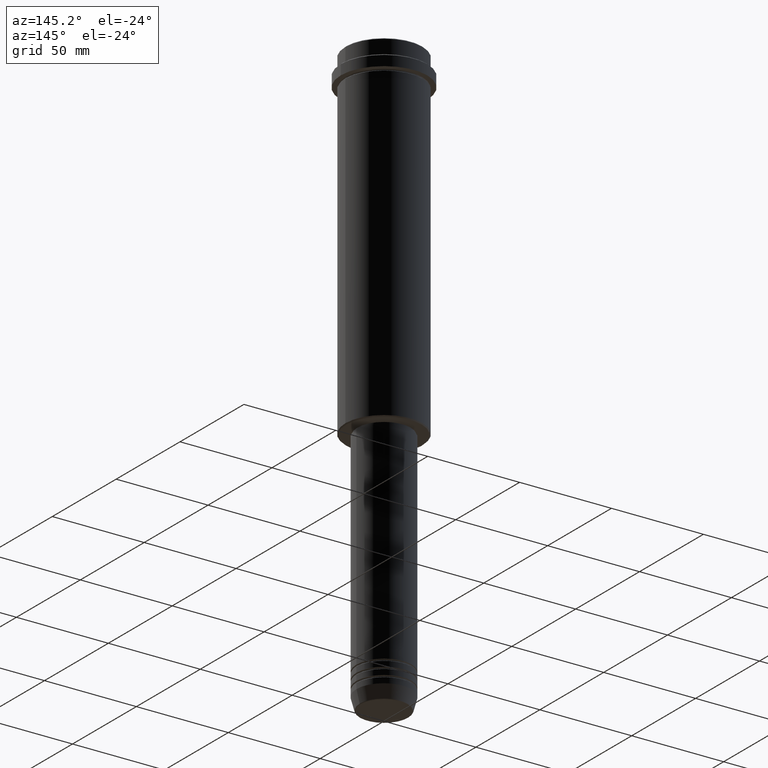
[diagram: clean part render]
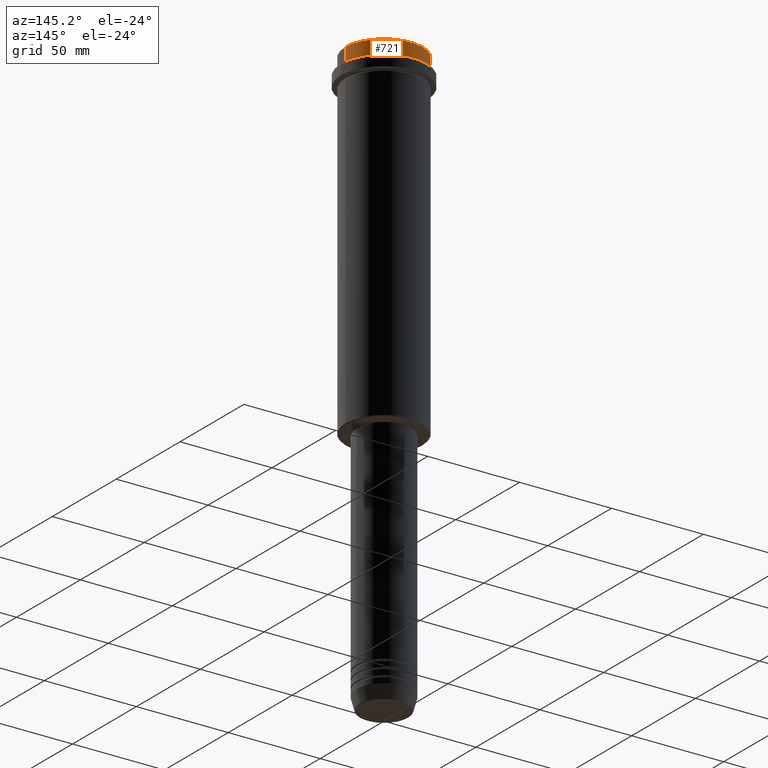
[diagram: same view with one face highlighted and labeled with its STEP entity id]
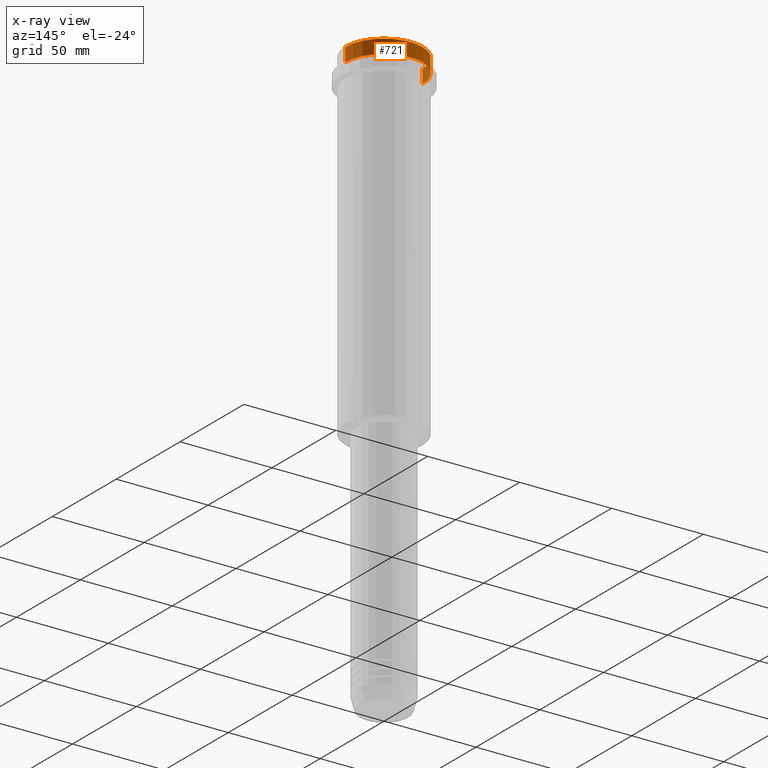
[diagram: x-ray of the same camera — body ghosted, the highlighted face saturated]
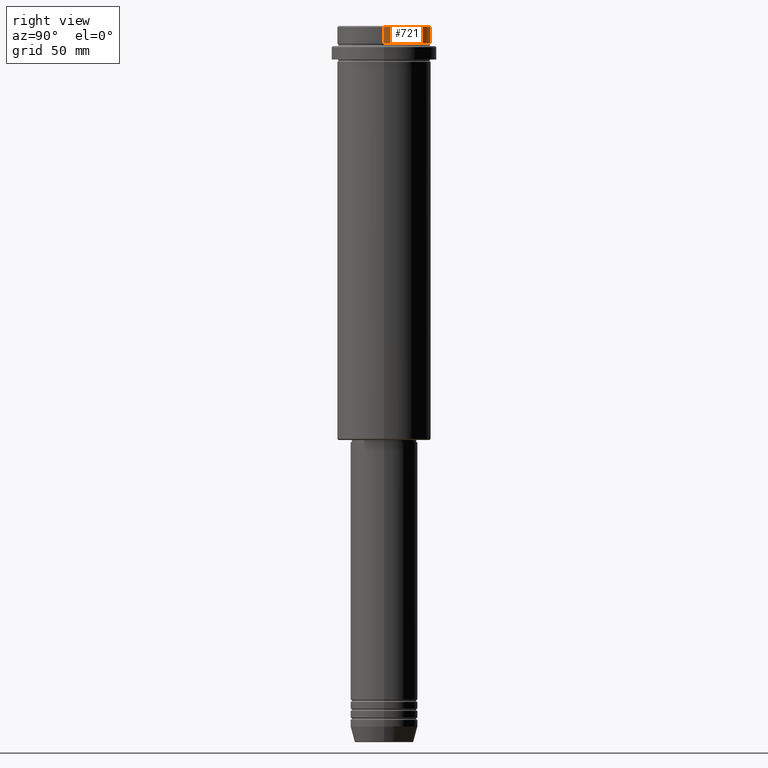
[diagram: same view with one face highlighted and labeled with its STEP entity id]
A machine part, auxiliary view. The second image highlights one B-rep face of the part: STEP entity #721.
The next image is the same camera in x-ray: the body ghosted, the highlighted face saturated — about 0% of this face is hidden behind the body in this view.
A second angle (right view) of the same face is appended — the face is thin or edge-on in the first view.
In plain terms, the highlighted cylindrical surface (partial cylindrical patch) has radius 21 mm, axis along (-0, -0, 1).
Its self-contained STEP definition (entity closure, byte-faithful):
#19 = EDGE_LOOP ( 'NONE', ( #1381, #1322, #962, #1065 ) ) ;
#21 = EDGE_CURVE ( 'NONE', #1343, #1353, #221, .T. ) ;
#56 = CARTESIAN_POINT ( 'NONE',  ( 0.000000000000000000, 0.000000000000000000, -0.4999999999999518718 ) ) ;
#82 = VERTEX_POINT ( 'NONE', #1306 ) ;
#91 = DIRECTION ( 'NONE',  ( -0.000000000000000000, -0.000000000000000000, 1.000000000000000000 ) ) ;
#109 = DIRECTION ( 'NONE',  ( 1.000000000000000000, 0.000000000000000000, 0.000000000000000000 ) ) ;
#138 = EDGE_CURVE ( 'NONE', #643, #1353, #872, .T. ) ;
#146 = EDGE_CURVE ( 'NONE', #82, #1343, #1168, .T. ) ;
#217 = DIRECTION ( 'NONE',  ( -0.000000000000000000, -0.000000000000000000, 1.000000000000000000 ) ) ;
#220 = CARTESIAN_POINT ( 'NONE',  ( 20.99999999999999645, 0.000000000000000000, -0.4999999999999518718 ) ) ;
#221 = CIRCLE ( 'NONE', #1159, 20.99999999999999645 ) ;
#434 = CARTESIAN_POINT ( 'NONE',  ( 0.000000000000000000, 0.000000000000000000, 0.000000000000000000 ) ) ;
#464 = CARTESIAN_POINT ( 'NONE',  ( 20.99999999999999645, 0.000000000000000000, -7.999999999999998224 ) ) ;
#493 = DIRECTION ( 'NONE',  ( 0.000000000000000000, 0.000000000000000000, -1.000000000000000000 ) ) ;
#497 = CARTESIAN_POINT ( 'NONE',  ( 0.000000000000000000, 0.000000000000000000, -7.999999999999998224 ) ) ;
#515 = CARTESIAN_POINT ( 'NONE',  ( 20.99999999999999645, 0.000000000000000000, 0.000000000000000000 ) ) ;
#529 = CARTESIAN_POINT ( 'NONE',  ( -20.99999999999999645, 2.571758278209441267E-15, 0.000000000000000000 ) ) ;
#643 = VERTEX_POINT ( 'NONE', #464 ) ;
#721 = ADVANCED_FACE ( 'NONE', ( #1008 ), #778, .T. ) ;
#763 = CARTESIAN_POINT ( 'NONE',  ( -20.99999999999999645, 2.571758278209441267E-15, -0.4999999999999518718 ) ) ;
#778 = CYLINDRICAL_SURFACE ( 'NONE', #886, 20.99999999999999645 ) ;
#799 = DIRECTION ( 'NONE',  ( -0.000000000000000000, -0.000000000000000000, 1.000000000000000000 ) ) ;
#831 = DIRECTION ( 'NONE',  ( 1.000000000000000000, 0.000000000000000000, 0.000000000000000000 ) ) ;
#872 = LINE ( 'NONE', #515, #1045 ) ;
#882 = EDGE_CURVE ( 'NONE', #643, #82, #958, .T. ) ;
#886 = AXIS2_PLACEMENT_3D ( 'NONE', #434, #217, #109 ) ;
#889 = AXIS2_PLACEMENT_3D ( 'NONE', #497, #799, #1239 ) ;
#958 = CIRCLE ( 'NONE', #889, 20.99999999999999645 ) ;
#962 = ORIENTED_EDGE ( 'NONE', *, *, #21, .T. ) ;
#1008 = FACE_OUTER_BOUND ( 'NONE', #19, .T. ) ;
#1045 = VECTOR ( 'NONE', #91, 1000.000000000000000 ) ;
#1059 = DIRECTION ( 'NONE',  ( -0.000000000000000000, -0.000000000000000000, 1.000000000000000000 ) ) ;
#1065 = ORIENTED_EDGE ( 'NONE', *, *, #138, .F. ) ;
#1159 = AXIS2_PLACEMENT_3D ( 'NONE', #56, #493, #831 ) ;
#1168 = LINE ( 'NONE', #529, #1368 ) ;
#1239 = DIRECTION ( 'NONE',  ( 1.000000000000000000, 0.000000000000000000, 0.000000000000000000 ) ) ;
#1306 = CARTESIAN_POINT ( 'NONE',  ( -20.99999999999999645, 2.571758278209441267E-15, -7.999999999999998224 ) ) ;
#1322 = ORIENTED_EDGE ( 'NONE', *, *, #146, .T. ) ;
#1343 = VERTEX_POINT ( 'NONE', #763 ) ;
#1353 = VERTEX_POINT ( 'NONE', #220 ) ;
#1368 = VECTOR ( 'NONE', #1059, 1000.000000000000000 ) ;
#1381 = ORIENTED_EDGE ( 'NONE', *, *, #882, .T. ) ;